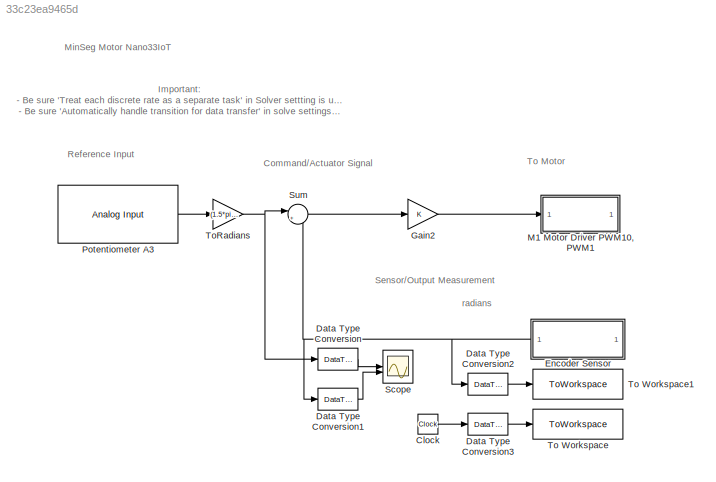
MODEL slx_33c23ea9465d
KIND model
CONFIG AbsTol = auto
CONFIG EnableMultiTasking = on
CONFIG FixedStep = auto
CONFIG MaxStep = auto
CONFIG MinStep = auto
CONFIG RelTol = 1e-3
CONFIG SampleTimeConstraint = Unconstrained
CONFIG SolverName = ode45
CONFIG StartTime = 0.0
CONFIG StopTime = 10.0
BLOCK [Clock] Clock
BLOCK [DataTypeConversion] Data Type Conversion
  OutDataTypeStr = single
  RndMeth = Floor
  SaturateOnIntegerOverflow = off
BLOCK [DataTypeConversion] Data Type Conversion1
  OutDataTypeStr = single
  RndMeth = Floor
  SaturateOnIntegerOverflow = off
BLOCK [DataTypeConversion] Data Type Conversion2
  OutDataTypeStr = single
  RndMeth = Floor
  SaturateOnIntegerOverflow = off
BLOCK [DataTypeConversion] Data Type Conversion3
  OutDataTypeStr = single
  RndMeth = Floor
  SaturateOnIntegerOverflow = off
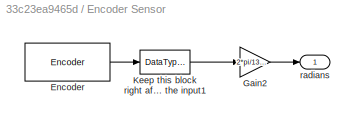
BLOCK [SubSystem] Encoder Sensor
  NameLocation = top
BLOCK [Reference] Encoder Sensor/Encoder  REF=arduinosensorlib/Encoder
  SourceBlock = arduinosensorlib/Encoder
  SourceType = Arduino Rotary Encoder
BLOCK [Gain] Encoder Sensor/Gain2
  Gain = 2*pi/1336
BLOCK [DataTypeConversion] Encoder Sensor/Keep this block right after the input1
  OutDataTypeStr = double
  RndMeth = Floor
  SaturateOnIntegerOverflow = off
BLOCK [Outport] Encoder Sensor/radians
BLOCK [Gain] Gain2
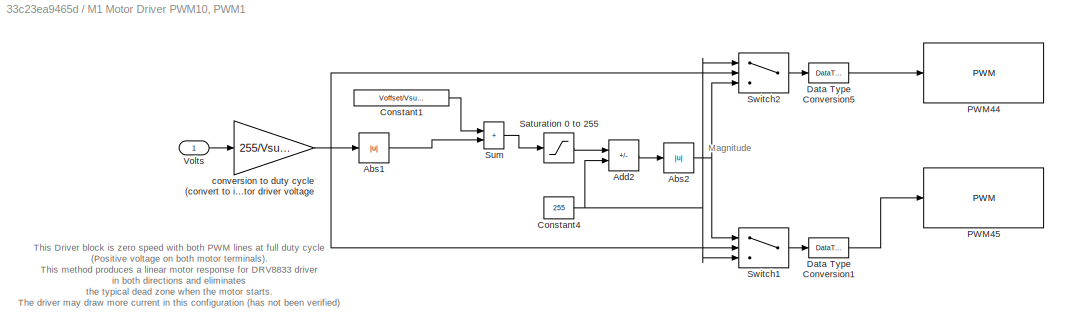
BLOCK [SubSystem] M1 Motor Driver PWM10, PWM1
BLOCK [Abs] M1 Motor Driver PWM10, PWM1/Abs1
  SaturateOnIntegerOverflow = off
BLOCK [Abs] M1 Motor Driver PWM10, PWM1/Abs2
  SaturateOnIntegerOverflow = off
BLOCK [Sum] M1 Motor Driver PWM10, PWM1/Add2
  IconShape = rectangular
  Inputs = -+
BLOCK [Constant] M1 Motor Driver PWM10, PWM1/Constant1
  Value = Voffset/Vsupply*255
BLOCK [Constant] M1 Motor Driver PWM10, PWM1/Constant4
  Value = 255
BLOCK [DataTypeConversion] M1 Motor Driver PWM10, PWM1/Data Type Conversion1
  OutDataTypeStr = uint8
  RndMeth = Floor
  SaturateOnIntegerOverflow = off
BLOCK [DataTypeConversion] M1 Motor Driver PWM10, PWM1/Data Type Conversion5
  OutDataTypeStr = uint8
  RndMeth = Floor
  SaturateOnIntegerOverflow = off
BLOCK [Reference] M1 Motor Driver PWM10, PWM1/PWM44  REF=arduinolib/PWM
  SourceBlock = arduinolib/PWM
  SourceType = Arduino PWM
BLOCK [Reference] M1 Motor Driver PWM10, PWM1/PWM45  REF=arduinolib/PWM
  SourceBlock = arduinolib/PWM
  SourceType = Arduino PWM
BLOCK [Saturate] M1 Motor Driver PWM10, PWM1/Saturation 0 to 255
  LowerLimit = 0
  UpperLimit = 255
BLOCK [Sum] M1 Motor Driver PWM10, PWM1/Sum
  IconShape = rectangular
BLOCK [Switch] M1 Motor Driver PWM10, PWM1/Switch1
  InputSameDT = off
  SaturateOnIntegerOverflow = off
BLOCK [Switch] M1 Motor Driver PWM10, PWM1/Switch2
  InputSameDT = off
  SaturateOnIntegerOverflow = off
BLOCK [Inport] M1 Motor Driver PWM10, PWM1/Volts
BLOCK [Gain] M1 Motor Driver PWM10, PWM1/conversion to duty cycle (convert to int) denominator is motor driver voltage
  Gain = 255/Vsupply
  OutDataTypeStr = int16
BLOCK [Reference] Potentiometer A3  REF=arduinolib/Analog Input
  SourceBlock = arduinolib/Analog Input
  SourceType = Arduino Analog Input
BLOCK [Scope] Scope
  ActiveDisplayYMaximum = 5.3984368211822584
  ActiveDisplayYMinimum = -0.61550292384345073
  DataLoggingVariableName = ScopeData3
  Floating = off
  GraphicalSettings = {"Style":{"BackgroundColor":[0.12941176470588237,0.12941176470588237,0.12941176470588237],"AxesColor":[0.07058823529411765,0.07058823529411765,0.07058823529411765],"LabelsColor":[0.8509803921568627,0.8509803921568627,0.8509803921568627],"PreserveColors":false,"Visible":[true,true],"LineStyle":["-","-"],"LineWidth":[1.5,1.5],"BarWidth":[0.9,0.9],"LineColor":["auto","auto"],"LineFaceAlpha":[1,1],"Li...<+2195ch>
  MultipleDisplayCache = [{"MaxYLimMag":5.3984368211822584,"MaxYLimReal":5.3984368211822584,"MinYLimMag":0,"MinYLimReal":-0.61550292384345073,"PlotAsMagnitudePhase":false,"ShowGrid":true,"ShowLegend":false,"Title":"%<SignalLabel>","YLabel":""}]
  NumInputPorts = 2
  ScopeFrameLocation = window
  Visible = on
  WasSavedAsWebScope = on
  WindowPosition = [1693.000000,434.000000,609.000000,843.000000,]
BLOCK [Sum] Sum
  Inputs = |+-
BLOCK [ToWorkspace] To Workspace
  FixptAsFi = on
  MaxDataPoints = inf
  SampleTime = -1
  Save2DSignal = 2-D array (concatenate along first dimension)
  VariableName = t
BLOCK [ToWorkspace] To Workspace1
  FixptAsFi = on
  MaxDataPoints = inf
  SampleTime = -1
  Save2DSignal = 2-D array (concatenate along first dimension)
  VariableName = pos
BLOCK [Gain] ToRadians
  Gain = (1.5*pi)/4096
ANNOTATION (root): Important: - Be sure 'Treat each discrete rate as a separate task' in Solver settting is unchecked - Be sure 'Automatically handle transition for data transfer' in solve settings is unchecked
ANNOTATION (root): Command/Actuator Signal
ANNOTATION (root): Reference Input
ANNOTATION (root): Sensor/Output Measurement
ANNOTATION (root): To Motor
ANNOTATION (root): MinSeg Motor Nano33IoT
ANNOTATION (root): radians
ANNOTATION M1 Motor Driver PWM10, PWM1: Magnitude
ANNOTATION M1 Motor Driver PWM10, PWM1: This Driver block is zero speed with both PWM lines at full duty cycle (Positive voltage on both motor terminals). This method produces a linear motor response for DRV8833 driver in both directions and eliminates the typical dead zone when the motor starts. The driver may draw more current in this configuration (has not been verified) The SN754410 driver this has no effect, so the driver could alt...<+76ch>
LINE Clock:1 -> Data Type Conversion3:1
LINE Data Type Conversion1:1 -> Scope:2
LINE Data Type Conversion2:1 -> To Workspace1:1
LINE Data Type Conversion3:1 -> To Workspace:1
LINE Data Type Conversion:1 -> Scope:1
LINE Encoder Sensor/Encoder:1 -> Encoder Sensor/Keep this block right after the input1:1
LINE Encoder Sensor/Gain2:1 -> Encoder Sensor/radians:1
LINE Encoder Sensor/Keep this block right after the input1:1 -> Encoder Sensor/Gain2:1
NET Encoder Sensor:1 -> Data Type Conversion1:1, Data Type Conversion2:1, Sum:2
LINE Gain2:1 -> M1 Motor Driver PWM10, PWM1:1
LINE M1 Motor Driver PWM10, PWM1/Abs1:1 -> M1 Motor Driver PWM10, PWM1/Sum:2
NET M1 Motor Driver PWM10, PWM1/Abs2:1 -> M1 Motor Driver PWM10, PWM1/Switch1:1, M1 Motor Driver PWM10, PWM1/Switch2:3
LINE M1 Motor Driver PWM10, PWM1/Add2:1 -> M1 Motor Driver PWM10, PWM1/Abs2:1
LINE M1 Motor Driver PWM10, PWM1/Constant1:1 -> M1 Motor Driver PWM10, PWM1/Sum:1
NET M1 Motor Driver PWM10, PWM1/Constant4:1 -> M1 Motor Driver PWM10, PWM1/Add2:2, M1 Motor Driver PWM10, PWM1/Switch1:3, M1 Motor Driver PWM10, PWM1/Switch2:1
LINE M1 Motor Driver PWM10, PWM1/Data Type Conversion1:1 -> M1 Motor Driver PWM10, PWM1/PWM45:1
LINE M1 Motor Driver PWM10, PWM1/Data Type Conversion5:1 -> M1 Motor Driver PWM10, PWM1/PWM44:1
LINE M1 Motor Driver PWM10, PWM1/Saturation 0 to 255:1 -> M1 Motor Driver PWM10, PWM1/Add2:1
LINE M1 Motor Driver PWM10, PWM1/Sum:1 -> M1 Motor Driver PWM10, PWM1/Saturation 0 to 255:1
LINE M1 Motor Driver PWM10, PWM1/Switch1:1 -> M1 Motor Driver PWM10, PWM1/Data Type Conversion1:1
LINE M1 Motor Driver PWM10, PWM1/Switch2:1 -> M1 Motor Driver PWM10, PWM1/Data Type Conversion5:1
LINE M1 Motor Driver PWM10, PWM1/Volts:1 -> M1 Motor Driver PWM10, PWM1/conversion to duty cycle (convert to int) denominator is motor driver voltage:1
NET M1 Motor Driver PWM10, PWM1/conversion to duty cycle (convert to int) denominator is motor driver voltage:1 -> M1 Motor Driver PWM10, PWM1/Abs1:1, M1 Motor Driver PWM10, PWM1/Switch1:2, M1 Motor Driver PWM10, PWM1/Switch2:2
LINE Potentiometer A3:1 -> ToRadians:1
LINE Sum:1 -> Gain2:1
NET ToRadians:1 -> Data Type Conversion:1, Sum:1
note: NET lines group one-source signal fan-out (src -> all destinations, sorted); 1:1 wires keep LINE
